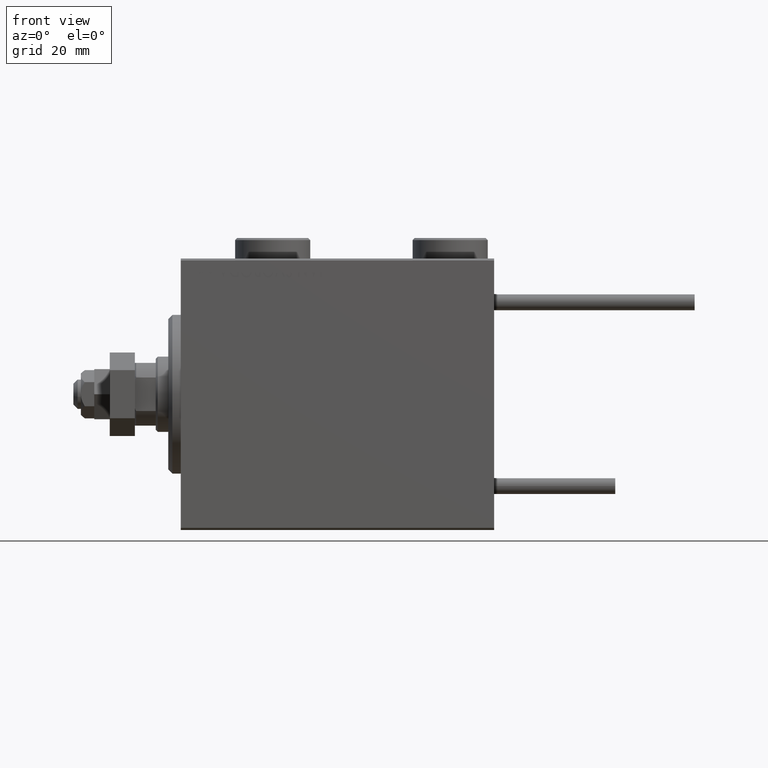
[diagram: clean part render]
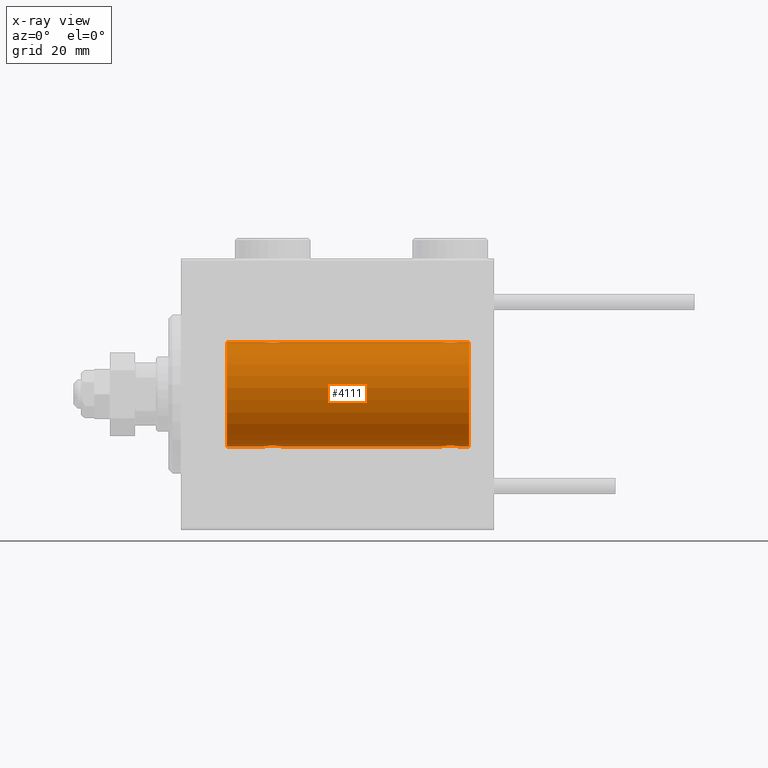
[diagram: x-ray — body ghosted, one internal face saturated and labeled with its STEP entity id]
A machine part, front view, then the same camera in x-ray: the body is ghosted and one INTERNAL B-rep face — a face not visible from any outside direction — is saturated and labeled: STEP entity #4111.
In plain terms, the highlighted cylindrical surface (partial cylindrical patch) has radius 12.5 mm, axis along (-1, -0, -0).
Its self-contained STEP definition (entity closure, byte-faithful):
#568 = EDGE_LOOP ( 'NONE', ( #42276, #43595, #14119, #36199, #1905, #38039, #41156, #28435, #34265, #52362, #14137, #30525 ) ) ;
#1183 = CARTESIAN_POINT ( 'NONE',  ( 62.55255659427669457, -0.5247436444070334716, 12.49130933415156441 ) ) ;
#1412 = LINE ( 'NONE', #9634, #15680 ) ;
#1700 = CARTESIAN_POINT ( 'NONE',  ( 65.71854119541936257, -1.591305132013873358, 12.39851226212235957 ) ) ;
#1752 = CARTESIAN_POINT ( 'NONE',  ( 19.99999999999999645, -3.213890523917628161E-15, -12.50000000000000000 ) ) ;
#1905 = ORIENTED_EDGE ( 'NONE', *, *, #15965, .T. ) ;
#2988 = VERTEX_POINT ( 'NONE', #31046 ) ;
#3270 = CARTESIAN_POINT ( 'NONE',  ( 21.48306273302371494, -1.936441098420706997, -12.34912369794528431 ) ) ;
#3366 = CARTESIAN_POINT ( 'NONE',  ( 65.14643896963592340, -1.897190184049178274, -12.35529285772521568 ) ) ;
#3387 = EDGE_CURVE ( 'NONE', #11657, #35483, #35511, .T. ) ;
#3557 = CIRCLE ( 'NONE', #36664, 12.50000000000000000 ) ;
#3627 = CARTESIAN_POINT ( 'NONE',  ( 63.61383846120567398, -1.797736511708062368, -12.37015393445320832 ) ) ;
#4111 = ADVANCED_FACE ( 'NONE', ( #32897 ), #37662, .F. ) ;
#4221 = CARTESIAN_POINT ( 'NONE',  ( 20.41018909771710454, -1.220538259806349446, 12.44075068685996932 ) ) ;
#4413 = CARTESIAN_POINT ( 'NONE',  ( 66.08981090228292032, -1.220538259806340786, -12.44075068685997287 ) ) ;
#4480 = CARTESIAN_POINT ( 'NONE',  ( 23.74662136620892383, -1.008535157355842538, 12.46157701909767646 ) ) ;
#4507 = CARTESIAN_POINT ( 'NONE',  ( 22.51961472357873717, -1.935716533151642826, -12.34923763528285257 ) ) ;
#4654 = CARTESIAN_POINT ( 'NONE',  ( 62.70214393531739461, -0.8858253204748003373, 12.46915613403960421 ) ) ;
#5115 = CARTESIAN_POINT ( 'NONE',  ( 19.99999999999999645, -7.265724481447607133E-23, 12.50000000000000000 ) ) ;
#5692 = CARTESIAN_POINT ( 'NONE',  ( 64.36659749548704212, -1.999916920503812534, 12.33897614545467647 ) ) ;
#5949 = CARTESIAN_POINT ( 'NONE',  ( 63.61125274202959901, -1.796480516834681573, 12.37033750336835958 ) ) ;
#6204 = VECTOR ( 'NONE', #13227, 1000.000000000000000 ) ;
#6476 = CARTESIAN_POINT ( 'NONE',  ( 65.82116712851446039, -1.507135374967687458, 12.40915432986586886 ) ) ;
#6731 = CARTESIAN_POINT ( 'NONE',  ( 63.98038527642127349, -1.935716533151639718, 12.34923763528284546 ) ) ;
#6945 = CARTESIAN_POINT ( 'NONE',  ( 24.00000000000000000, -0.2646816682749787430, 12.50000000000000178 ) ) ;
#7251 = CARTESIAN_POINT ( 'NONE',  ( 69.00000000000000000, 0.000000000000000000, 12.50000000000000000 ) ) ;
#8631 = CARTESIAN_POINT ( 'NONE',  ( 62.49999999999997868, -0.2612140938986745042, 12.50000000000000000 ) ) ;
#8744 = CARTESIAN_POINT ( 'NONE',  ( 20.67883287148555382, -1.507135374967699670, -12.40915432986587064 ) ) ;
#9306 = DIRECTION ( 'NONE',  ( 0.000000000000000000, 0.000000000000000000, 1.000000000000000000 ) ) ;
#9634 = CARTESIAN_POINT ( 'NONE',  ( 69.00000000000000000, 1.530808498934191521E-15, -12.50000000000000000 ) ) ;
#9928 = CARTESIAN_POINT ( 'NONE',  ( 66.50000000000001421, -0.2646816682749792982, 12.50000000000000178 ) ) ;
#10450 = CARTESIAN_POINT ( 'NONE',  ( 63.17700056892268634, -1.505544071529930639, 12.40934942683854025 ) ) ;
#10513 = B_SPLINE_CURVE_WITH_KNOTS ( 'NONE', 3,
 ( #28857, #8631, #1183, #4654, #17390, #37097, #51137, #10450, #38667, #30938, #5949, #26171, #6731, #47150, #5692, #50346, #34142, #42902, #22175, #13911, #51411, #1700, #6476, #30158, #39184, #26431, #9928, #34933 ),
 .UNSPECIFIED., .F., .F.,
 ( 4, 2, 2, 2, 2, 2, 2, 2, 2, 2, 2, 2, 2, 4 ),
 ( 0.006262980370572151546, 0.007045658964677331722, 0.007436998261729929616, 0.007828337558782528377, 0.008219676855835125404, 0.008611016152887724165, 0.009002355449940321191, 0.009393694746992919953, 0.009785034044045518714, 0.01017637334109811748, 0.01056771263815071624, 0.01095905193520331326, 0.01174173052930854028, 0.01252440912341376555 ),
 .UNSPECIFIED. ) ;
#10534 = CARTESIAN_POINT ( 'NONE',  ( 66.50000000000000000, 1.530808426270318106E-15, -12.50000000000000000 ) ) ;
#10933 = CARTESIAN_POINT ( 'NONE',  ( 22.64425278797729391, -1.897913903092048438, 12.35518060345725111 ) ) ;
#10961 = CARTESIAN_POINT ( 'NONE',  ( 21.73906502714393341, -1.987194304939077671, -12.34105826212746138 ) ) ;
#11657 = VERTEX_POINT ( 'NONE', #5115 ) ;
#12110 = CARTESIAN_POINT ( 'NONE',  ( 69.00000000000000000, 1.530808498934191521E-15, -12.50000000000000000 ) ) ;
#12165 = CARTESIAN_POINT ( 'NONE',  ( 21.11125274202960256, -1.796480516834690233, 12.37033750336835958 ) ) ;
#12293 = VECTOR ( 'NONE', #36351, 1000.000000000000000 ) ;
#12694 = CARTESIAN_POINT ( 'NONE',  ( 19.99999999999999289, -0.2612140938986765581, 12.50000000000000000 ) ) ;
#12720 = CARTESIAN_POINT ( 'NONE',  ( 19.99999999999999645, -3.213890523917628161E-15, -12.50000000000000000 ) ) ;
#13227 = DIRECTION ( 'NONE',  ( -1.000000000000000000, -0.000000000000000000, -0.000000000000000000 ) ) ;
#13734 = DIRECTION ( 'NONE',  ( -1.000000000000000000, -0.000000000000000000, -0.000000000000000000 ) ) ;
#13911 = CARTESIAN_POINT ( 'NONE',  ( 65.38616153879434023, -1.797736511708053264, 12.37015393445321010 ) ) ;
#14065 = CARTESIAN_POINT ( 'NONE',  ( 69.00000000000000000, 0.000000000000000000, 0.000000000000000000 ) ) ;
#14119 = ORIENTED_EDGE ( 'NONE', *, *, #19395, .T. ) ;
#14137 = ORIENTED_EDGE ( 'NONE', *, *, #21912, .T. ) ;
#14912 = CARTESIAN_POINT ( 'NONE',  ( 20.67700056892266502, -1.505544071529935968, 12.40934942683853670 ) ) ;
#14943 = CARTESIAN_POINT ( 'NONE',  ( 22.26391373102435622, -1.986793270638196551, -12.34112317291864791 ) ) ;
#15001 = CARTESIAN_POINT ( 'NONE',  ( 24.00000000000000000, 1.530808426277417854E-15, -12.50000000000000000 ) ) ;
#15211 = CARTESIAN_POINT ( 'NONE',  ( 22.88874725797039389, -1.796480516834687347, -12.37033750336835247 ) ) ;
#15380 = CIRCLE ( 'NONE', #45978, 12.50000000000000000 ) ;
#15680 = VECTOR ( 'NONE', #26139, 1000.000000000000000 ) ;
#15834 = CARTESIAN_POINT ( 'NONE',  ( 66.44744340572329122, -0.5247436444070331385, -12.49130933415156619 ) ) ;
#15965 = EDGE_CURVE ( 'NONE', #49492, #16372, #49313, .T. ) ;
#16095 = CARTESIAN_POINT ( 'NONE',  ( 63.49900207901494298, -1.736403706023268878, -12.37902502246768321 ) ) ;
#16356 = CARTESIAN_POINT ( 'NONE',  ( 64.23906502714395117, -1.987194304939075673, -12.34105826212746138 ) ) ;
#16372 = VERTEX_POINT ( 'NONE', #1752 ) ;
#16675 = DIRECTION ( 'NONE',  ( -1.000000000000000000, 0.000000000000000000, 0.000000000000000000 ) ) ;
#16693 = CARTESIAN_POINT ( 'NONE',  ( 19.99999999999999645, -7.265724481447607133E-23, 12.50000000000000000 ) ) ;
#16718 = CARTESIAN_POINT ( 'NONE',  ( 24.00000000000000711, -0.2612140938986747818, -12.50000000000000533 ) ) ;
#16806 = EDGE_CURVE ( 'NONE', #48939, #35808, #28253, .T. ) ;
#16851 = VERTEX_POINT ( 'NONE', #24531 ) ;
#17214 = LINE ( 'NONE', #49671, #6204 ) ;
#17390 = CARTESIAN_POINT ( 'NONE',  ( 62.76436921980424444, -1.002396200863564291, 12.46022444231050663 ) ) ;
#17438 = DIRECTION ( 'NONE',  ( 0.000000000000000000, 0.000000000000000000, 1.000000000000000000 ) ) ;
#18066 = VERTEX_POINT ( 'NONE', #44412 ) ;
#18150 = VECTOR ( 'NONE', #30980, 1000.000000000000000 ) ;
#19220 = CARTESIAN_POINT ( 'NONE',  ( 23.32299943107732432, -1.505544071529935080, -12.40934942683853848 ) ) ;
#19227 = DIRECTION ( 'NONE',  ( -1.000000000000000000, -0.000000000000000000, -0.000000000000000000 ) ) ;
#19395 = EDGE_CURVE ( 'NONE', #51947, #18066, #30310, .T. ) ;
#19737 = CARTESIAN_POINT ( 'NONE',  ( 23.73563078019576977, -1.002396200863559184, -12.46022444231050663 ) ) ;
#19839 = CARTESIAN_POINT ( 'NONE',  ( 63.17883287148555382, -1.507135374967701447, -12.40915432986587064 ) ) ;
#20170 = CARTESIAN_POINT ( 'NONE',  ( 22.13089967323422869, -2.000082296475568011, 12.33894933996983134 ) ) ;
#20360 = CARTESIAN_POINT ( 'NONE',  ( 62.50000000000000000, -6.782673595553849353E-15, -12.50000000000000000 ) ) ;
#20620 = CARTESIAN_POINT ( 'NONE',  ( 63.28145880458059480, -1.591305132013875134, -12.39851226212236135 ) ) ;
#20689 = CARTESIAN_POINT ( 'NONE',  ( 24.00000000000000000, -4.527848004210791175E-16, 12.50000000000000000 ) ) ;
#20719 = CARTESIAN_POINT ( 'NONE',  ( 20.78145880458060901, -1.591305132013878021, -12.39851226212236313 ) ) ;
#20978 = CARTESIAN_POINT ( 'NONE',  ( 20.99900207901491811, -1.736403706023270654, -12.37902502246767966 ) ) ;
#21435 = CARTESIAN_POINT ( 'NONE',  ( 66.50000000000000000, 3.163483401492493339E-15, 12.50000000000000000 ) ) ;
#21912 = EDGE_CURVE ( 'NONE', #16851, #35808, #10513, .T. ) ;
#22175 = CARTESIAN_POINT ( 'NONE',  ( 65.14425278797727970, -1.897913903092038890, 12.35518060345724933 ) ) ;
#22915 = CARTESIAN_POINT ( 'NONE',  ( 20.26436921980423023, -1.002396200863561404, 12.46022444231050841 ) ) ;
#23208 = CARTESIAN_POINT ( 'NONE',  ( 23.94744340572329833, -0.5247436444070328054, -12.49130933415156619 ) ) ;
#23573 = CARTESIAN_POINT ( 'NONE',  ( 65.72027149897421339, -1.589951752150270181, -12.39868561261689095 ) ) ;
#23736 = CARTESIAN_POINT ( 'NONE',  ( 20.40255225308977671, -1.231226695485369893, -12.44059298055988627 ) ) ;
#23834 = CARTESIAN_POINT ( 'NONE',  ( 65.82299943107733498, -1.505544071529929750, -12.40934942683853848 ) ) ;
#24300 = VERTEX_POINT ( 'NONE', #43054 ) ;
#24357 = CARTESIAN_POINT ( 'NONE',  ( 64.63340250451298630, -1.999916920503812978, -12.33897614545467647 ) ) ;
#24430 = CARTESIAN_POINT ( 'NONE',  ( 20.20214393531741237, -0.8858253204748024467, 12.46915613403961309 ) ) ;
#24531 = CARTESIAN_POINT ( 'NONE',  ( 62.50000000000000000, -7.266434456262306043E-23, 12.50000000000000000 ) ) ;
#26139 = DIRECTION ( 'NONE',  ( -1.000000000000000000, -0.000000000000000000, -0.000000000000000000 ) ) ;
#26171 = CARTESIAN_POINT ( 'NONE',  ( 63.85356103036409081, -1.897190184049181161, 12.35529285772521213 ) ) ;
#26431 = CARTESIAN_POINT ( 'NONE',  ( 66.44665679898379551, -0.5275951738695600080, 12.49118442338578561 ) ) ;
#27204 = CARTESIAN_POINT ( 'NONE',  ( 23.50722151467992660, -1.321088093821078502, -12.43033959299025248 ) ) ;
#27570 = CARTESIAN_POINT ( 'NONE',  ( 66.23563078019577688, -1.002396200863551412, -12.46022444231050841 ) ) ;
#28253 = LINE ( 'NONE', #7251, #33568 ) ;
#28346 = CARTESIAN_POINT ( 'NONE',  ( 66.00722151467994081, -1.321088093821072729, -12.43033959299025248 ) ) ;
#28419 = CARTESIAN_POINT ( 'NONE',  ( 22.88616153879432602, -1.797736511708064144, 12.37015393445320299 ) ) ;
#28435 = ORIENTED_EDGE ( 'NONE', *, *, #3387, .F. ) ;
#28615 = CARTESIAN_POINT ( 'NONE',  ( 64.76391373102437399, -1.986793270638192999, -12.34112317291865146 ) ) ;
#28857 = CARTESIAN_POINT ( 'NONE',  ( 62.50000000000000000, -7.266434456262306043E-23, 12.50000000000000000 ) ) ;
#28946 = CARTESIAN_POINT ( 'NONE',  ( 22.26093497285607370, -1.987194304939079448, 12.34105826212746138 ) ) ;
#30158 = CARTESIAN_POINT ( 'NONE',  ( 66.09744774691023395, -1.231226695485355904, 12.44059298055988450 ) ) ;
#30303 = DIRECTION ( 'NONE',  ( -1.000000000000000000, 0.000000000000000000, 0.000000000000000000 ) ) ;
#30310 = B_SPLINE_CURVE_WITH_KNOTS ( 'NONE', 3,
 ( #10534, #39009, #15834, #40581, #27570, #4413, #28346, #23834, #23573, #32869, #48548, #3366, #32081, #28615, #24357, #48290, #16356, #31821, #40061, #3627, #16095, #20620, #19839, #32338, #36070, #49077, #40841, #20360 ),
 .UNSPECIFIED., .F., .F.,
 ( 4, 2, 2, 2, 2, 2, 2, 2, 2, 2, 2, 2, 2, 4 ),
 ( 0.006262980370572170628, 0.007045658964677357743, 0.007436998261729959973, 0.007828337558782561337, 0.008219676855835163568, 0.008611016152887764064, 0.009002355449940366294, 0.009393694746992968525, 0.009785034044045570756, 0.01017637334109817299, 0.01056771263815077348, 0.01095905193520337745, 0.01174173052930858191, 0.01252440912341378637 ),
 .UNSPECIFIED. ) ;
#30525 = ORIENTED_EDGE ( 'NONE', *, *, #16806, .F. ) ;
#30938 = CARTESIAN_POINT ( 'NONE',  ( 63.49654425923309731, -1.734959850168412254, 12.37922718965051061 ) ) ;
#30980 = DIRECTION ( 'NONE',  ( -1.000000000000000000, -0.000000000000000000, -0.000000000000000000 ) ) ;
#31046 = CARTESIAN_POINT ( 'NONE',  ( 10.99999999999999645, 1.530808498934191521E-15, -12.50000000000000000 ) ) ;
#31160 = CARTESIAN_POINT ( 'NONE',  ( 23.59744774691023039, -1.231226695485369893, 12.44059298055988272 ) ) ;
#31189 = CARTESIAN_POINT ( 'NONE',  ( 23.22027149897420628, -1.589951752150275732, -12.39868561261689273 ) ) ;
#31457 = CARTESIAN_POINT ( 'NONE',  ( 22.64643896963591985, -1.897190184049187378, -12.35529285772521924 ) ) ;
#31701 = CARTESIAN_POINT ( 'NONE',  ( 69.00000000000000000, 1.530808498934191521E-15, -12.50000000000000000 ) ) ;
#31717 = CARTESIAN_POINT ( 'NONE',  ( 23.00345574076691335, -1.734959850168410256, -12.37922718965050528 ) ) ;
#31821 = CARTESIAN_POINT ( 'NONE',  ( 63.98306273302372915, -1.936441098420705886, -12.34912369794528786 ) ) ;
#32081 = CARTESIAN_POINT ( 'NONE',  ( 65.01961472357872651, -1.935716533151637941, -12.34923763528285079 ) ) ;
#32338 = CARTESIAN_POINT ( 'NONE',  ( 62.90255225308977316, -1.231226695485371669, -12.44059298055988272 ) ) ;
#32631 = CARTESIAN_POINT ( 'NONE',  ( 69.00000000000000000, 0.000000000000000000, 0.000000000000000000 ) ) ;
#32636 = AXIS2_PLACEMENT_3D ( 'NONE', #32631, #41647, #17438 ) ;
#32676 = CARTESIAN_POINT ( 'NONE',  ( 20.49277848532005919, -1.321088093821079834, 12.43033959299025071 ) ) ;
#32760 = CARTESIAN_POINT ( 'NONE',  ( 66.50000000000000000, 1.530808426270318106E-15, -12.50000000000000000 ) ) ;
#32869 = CARTESIAN_POINT ( 'NONE',  ( 65.50345574076692401, -1.734959850168405593, -12.37922718965050528 ) ) ;
#32897 = FACE_OUTER_BOUND ( 'NONE', #568, .T. ) ;
#32961 = CARTESIAN_POINT ( 'NONE',  ( 20.00000000000000000, -0.2646816682749822958, -12.50000000000000000 ) ) ;
#33568 = VECTOR ( 'NONE', #19227, 1000.000000000000000 ) ;
#34142 = CARTESIAN_POINT ( 'NONE',  ( 64.76093497285604883, -1.987194304939074341, 12.34105826212746138 ) ) ;
#34265 = ORIENTED_EDGE ( 'NONE', *, *, #50036, .T. ) ;
#34296 = VECTOR ( 'NONE', #13734, 1000.000000000000000 ) ;
#34933 = CARTESIAN_POINT ( 'NONE',  ( 66.50000000000000000, 3.163483401492493339E-15, 12.50000000000000000 ) ) ;
#35155 = CARTESIAN_POINT ( 'NONE',  ( 21.86659749548704212, -1.999916920503820306, 12.33897614545467647 ) ) ;
#35185 = EDGE_CURVE ( 'NONE', #48877, #48939, #3557, .T. ) ;
#35483 = VERTEX_POINT ( 'NONE', #37800 ) ;
#35511 = LINE ( 'NONE', #51965, #18150 ) ;
#35808 = VERTEX_POINT ( 'NONE', #21435 ) ;
#35968 = CARTESIAN_POINT ( 'NONE',  ( 24.00000000000000000, 1.530808426277417854E-15, -12.50000000000000000 ) ) ;
#36070 = CARTESIAN_POINT ( 'NONE',  ( 62.75337863379105841, -1.008535157355846978, -12.46157701909767290 ) ) ;
#36199 = ORIENTED_EDGE ( 'NONE', *, *, #48435, .T. ) ;
#36351 = DIRECTION ( 'NONE',  ( -1.000000000000000000, -0.000000000000000000, -0.000000000000000000 ) ) ;
#36404 = CARTESIAN_POINT ( 'NONE',  ( 23.32116712851443907, -1.507135374967700558, 12.40915432986587064 ) ) ;
#36664 = AXIS2_PLACEMENT_3D ( 'NONE', #14065, #30303, #9306 ) ;
#36933 = CARTESIAN_POINT ( 'NONE',  ( 20.05255659427670167, -0.5247436444070346928, 12.49130933415156619 ) ) ;
#36959 = CARTESIAN_POINT ( 'NONE',  ( 23.79785606468258052, -0.8858253204748003373, -12.46915613403960954 ) ) ;
#37097 = CARTESIAN_POINT ( 'NONE',  ( 62.91018909771711520, -1.220538259806350778, 12.44075068685996754 ) ) ;
#37432 = CARTESIAN_POINT ( 'NONE',  ( 23.94665679898380617, -0.5275951738695671134, 12.49118442338578561 ) ) ;
#37662 = CYLINDRICAL_SURFACE ( 'NONE', #32636, 12.50000000000000000 ) ;
#37696 = LINE ( 'NONE', #42210, #34296 ) ;
#37800 = CARTESIAN_POINT ( 'NONE',  ( 10.99999999999999645, 0.000000000000000000, 12.50000000000000000 ) ) ;
#38039 = ORIENTED_EDGE ( 'NONE', *, *, #42132, .T. ) ;
#38667 = CARTESIAN_POINT ( 'NONE',  ( 63.27972850102581504, -1.589951752150278397, 12.39868561261688740 ) ) ;
#39009 = CARTESIAN_POINT ( 'NONE',  ( 66.49999999999997158, -0.2612140938986723948, -12.49999999999999822 ) ) ;
#39141 = CARTESIAN_POINT ( 'NONE',  ( 20.99654425923307954, -1.734959850168413587, 12.37922718965051061 ) ) ;
#39184 = CARTESIAN_POINT ( 'NONE',  ( 66.24662136620894159, -1.008535157355832768, 12.46157701909768178 ) ) ;
#39438 = CARTESIAN_POINT ( 'NONE',  ( 20.25337863379106551, -1.008535157355840761, -12.46157701909767646 ) ) ;
#39711 = EDGE_CURVE ( 'NONE', #2988, #35483, #15380, .T. ) ;
#40061 = CARTESIAN_POINT ( 'NONE',  ( 63.85574721202269188, -1.897913903092045329, -12.35518060345724933 ) ) ;
#40194 = B_SPLINE_CURVE_WITH_KNOTS ( 'NONE', 3,
 ( #16693, #12694, #36933, #24430, #22915, #4221, #32676, #14912, #48888, #39141, #12165, #44892, #51628, #48617, #35155, #20170, #28946, #40909, #10933, #28419, #49146, #43391, #36404, #31160, #4480, #37432, #6945, #20689 ),
 .UNSPECIFIED., .F., .F.,
 ( 4, 2, 2, 2, 2, 2, 2, 2, 2, 2, 2, 2, 2, 4 ),
 ( 0.006262980370572172363, 0.007045658964677369886, 0.007436998261729971249, 0.007828337558782571745, 0.008219676855835172241, 0.008611016152887774472, 0.009002355449940373233, 0.009393694746992975464, 0.009785034044045575960, 0.01017637334109817646, 0.01056771263815077869, 0.01095905193520337918, 0.01174173052930858538, 0.01252440912341379504 ),
 .UNSPECIFIED. ) ;
#40581 = CARTESIAN_POINT ( 'NONE',  ( 66.29785606468257697, -0.8858253204747996712, -12.46915613403960954 ) ) ;
#40841 = CARTESIAN_POINT ( 'NONE',  ( 62.50000000000001421, -0.2646816682749852379, -12.50000000000000178 ) ) ;
#40909 = CARTESIAN_POINT ( 'NONE',  ( 22.51693726697628151, -1.936441098420708773, 12.34912369794528608 ) ) ;
#41156 = ORIENTED_EDGE ( 'NONE', *, *, #39711, .T. ) ;
#41416 = CARTESIAN_POINT ( 'NONE',  ( 10.99999999999999645, 0.000000000000000000, 0.000000000000000000 ) ) ;
#41647 = DIRECTION ( 'NONE',  ( -1.000000000000000000, -0.000000000000000000, -0.000000000000000000 ) ) ;
#41676 = DIRECTION ( 'NONE',  ( 0.000000000000000000, 0.000000000000000000, 1.000000000000000000 ) ) ;
#42132 = EDGE_CURVE ( 'NONE', #16372, #2988, #17214, .T. ) ;
#42210 = CARTESIAN_POINT ( 'NONE',  ( 69.00000000000000000, 0.000000000000000000, 12.50000000000000000 ) ) ;
#42276 = ORIENTED_EDGE ( 'NONE', *, *, #35185, .F. ) ;
#42902 = CARTESIAN_POINT ( 'NONE',  ( 65.01693726697625664, -1.936441098420705220, 12.34912369794528786 ) ) ;
#43054 = CARTESIAN_POINT ( 'NONE',  ( 24.00000000000000000, -4.527848004210791175E-16, 12.50000000000000000 ) ) ;
#43391 = CARTESIAN_POINT ( 'NONE',  ( 23.21854119541938033, -1.591305132013879131, 12.39851226212235957 ) ) ;
#43595 = ORIENTED_EDGE ( 'NONE', *, *, #46676, .T. ) ;
#43684 = CARTESIAN_POINT ( 'NONE',  ( 21.86910032676576421, -2.000082296475566679, -12.33894933996983490 ) ) ;
#43942 = CARTESIAN_POINT ( 'NONE',  ( 21.35574721202270254, -1.897913903092047327, -12.35518060345725289 ) ) ;
#44188 = CARTESIAN_POINT ( 'NONE',  ( 69.00000000000000000, 0.000000000000000000, 12.50000000000000000 ) ) ;
#44412 = CARTESIAN_POINT ( 'NONE',  ( 62.50000000000000000, -6.782673595553849353E-15, -12.50000000000000000 ) ) ;
#44892 = CARTESIAN_POINT ( 'NONE',  ( 21.35356103036408371, -1.897190184049189599, 12.35529285772521391 ) ) ;
#45196 = EDGE_CURVE ( 'NONE', #16851, #24300, #37696, .T. ) ;
#45978 = AXIS2_PLACEMENT_3D ( 'NONE', #41416, #16675, #41676 ) ;
#46676 = EDGE_CURVE ( 'NONE', #48877, #51947, #1412, .T. ) ;
#47150 = CARTESIAN_POINT ( 'NONE',  ( 64.23608626897566864, -1.986793270638193443, 12.34112317291865146 ) ) ;
#47404 = CARTESIAN_POINT ( 'NONE',  ( 22.13340250451295077, -1.999916920503817197, -12.33897614545467469 ) ) ;
#47666 = CARTESIAN_POINT ( 'NONE',  ( 20.05334320101619738, -0.5275951738695662252, -12.49118442338578561 ) ) ;
#48290 = CARTESIAN_POINT ( 'NONE',  ( 64.36910032676578908, -2.000082296475564458, -12.33894933996983667 ) ) ;
#48435 = EDGE_CURVE ( 'NONE', #18066, #49492, #48559, .T. ) ;
#48548 = CARTESIAN_POINT ( 'NONE',  ( 65.38874725797043652, -1.796480516834676466, -12.37033750336835425 ) ) ;
#48559 = LINE ( 'NONE', #12110, #12293 ) ;
#48617 = CARTESIAN_POINT ( 'NONE',  ( 21.73608626897565799, -1.986793270638199438, 12.34112317291865502 ) ) ;
#48877 = VERTEX_POINT ( 'NONE', #31701 ) ;
#48888 = CARTESIAN_POINT ( 'NONE',  ( 20.77972850102578661, -1.589951752150277287, 12.39868561261688917 ) ) ;
#48939 = VERTEX_POINT ( 'NONE', #44188 ) ;
#49077 = CARTESIAN_POINT ( 'NONE',  ( 62.55334320101622581, -0.5275951738695753290, -12.49118442338578916 ) ) ;
#49146 = CARTESIAN_POINT ( 'NONE',  ( 23.00099792098508189, -1.736403706023272431, 12.37902502246767966 ) ) ;
#49174 = CARTESIAN_POINT ( 'NONE',  ( 21.11383846120566332, -1.797736511708062368, -12.37015393445320122 ) ) ;
#49313 = B_SPLINE_CURVE_WITH_KNOTS ( 'NONE', 3,
 ( #35968, #16718, #23208, #36959, #19737, #52171, #27204, #19220, #31189, #31717, #15211, #31457, #4507, #14943, #47404, #43684, #10961, #3270, #43942, #49174, #20978, #20719, #8744, #23736, #39438, #47666, #32961, #12720 ),
 .UNSPECIFIED., .F., .F.,
 ( 4, 2, 2, 2, 2, 2, 2, 2, 2, 2, 2, 2, 2, 4 ),
 ( 0.006262980370572176700, 0.007045658964677373355, 0.007436998261729973851, 0.007828337558782575215, 0.008219676855835175711, 0.008611016152887776207, 0.009002355449940376703, 0.009393694746992977199, 0.009785034044045577695, 0.01017637334109817646, 0.01056771263815077869, 0.01095905193520337745, 0.01174173052930858711, 0.01252440912341379504 ),
 .UNSPECIFIED. ) ;
#49492 = VERTEX_POINT ( 'NONE', #15001 ) ;
#49671 = CARTESIAN_POINT ( 'NONE',  ( 69.00000000000000000, 1.530808498934191521E-15, -12.50000000000000000 ) ) ;
#50036 = EDGE_CURVE ( 'NONE', #11657, #24300, #40194, .T. ) ;
#50346 = CARTESIAN_POINT ( 'NONE',  ( 64.63089967323422513, -2.000082296475560906, 12.33894933996983490 ) ) ;
#51137 = CARTESIAN_POINT ( 'NONE',  ( 62.99277848532008761, -1.321088093821075393, 12.43033959299025426 ) ) ;
#51411 = CARTESIAN_POINT ( 'NONE',  ( 65.50099792098508544, -1.736403706023266658, 12.37902502246767789 ) ) ;
#51628 = CARTESIAN_POINT ( 'NONE',  ( 21.48038527642126283, -1.935716533151644825, 12.34923763528284724 ) ) ;
#51947 = VERTEX_POINT ( 'NONE', #32760 ) ;
#51965 = CARTESIAN_POINT ( 'NONE',  ( 69.00000000000000000, 0.000000000000000000, 12.50000000000000000 ) ) ;
#52171 = CARTESIAN_POINT ( 'NONE',  ( 23.58981090228289546, -1.220538259806347225, -12.44075068685997287 ) ) ;
#52362 = ORIENTED_EDGE ( 'NONE', *, *, #45196, .F. ) ;